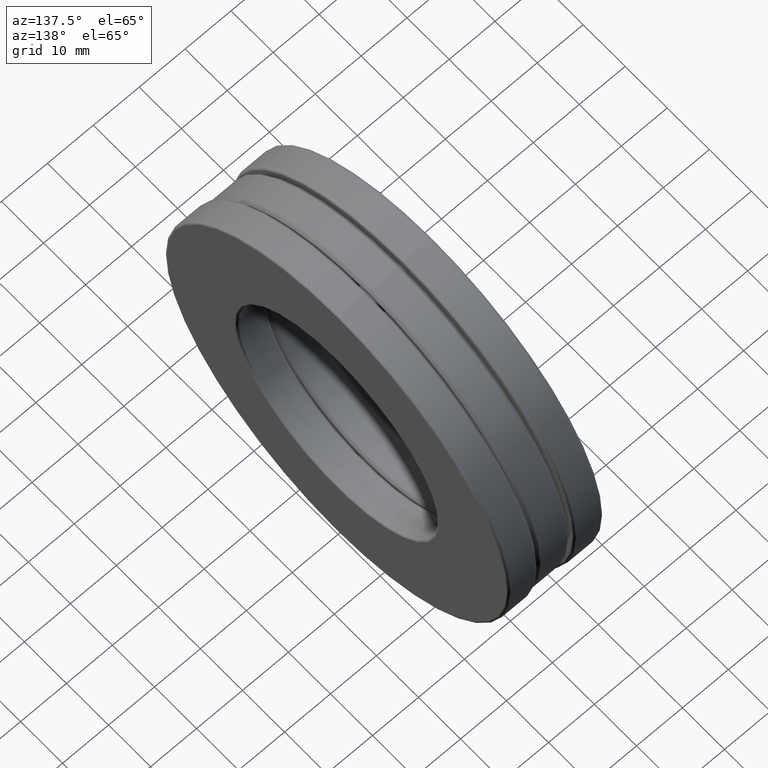
[diagram: clean part render]
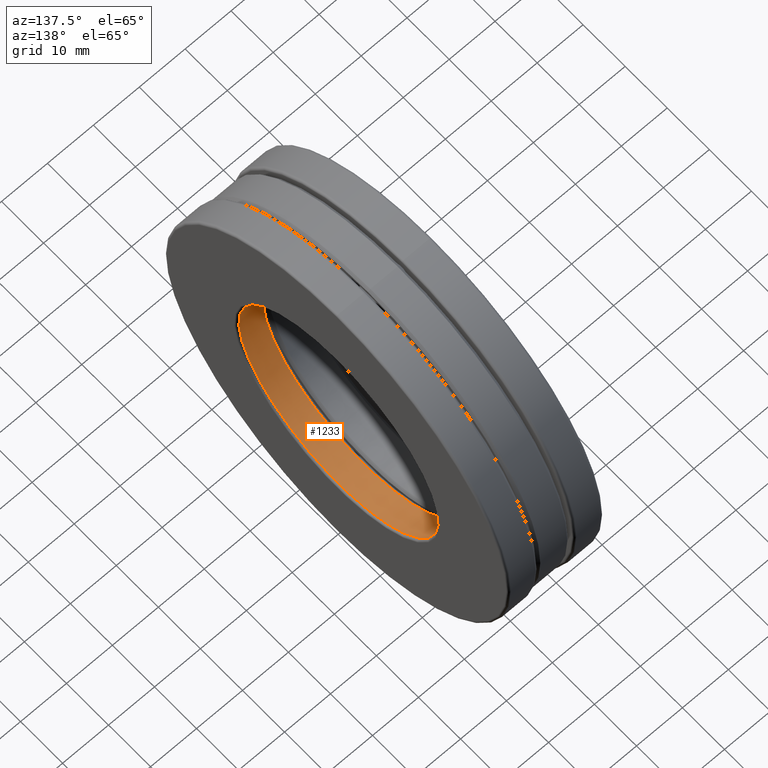
[diagram: same view with one face highlighted and labeled with its STEP entity id]
A machine part, auxiliary view. The second image highlights one B-rep face of the part: STEP entity #1233.
In plain terms, the highlighted cylindrical surface (bore or boss wall) has radius 23.8125 mm, axis along (-1, -0, -0).
Its self-contained STEP definition (entity closure, byte-faithful):
#74 = DIRECTION ( 'NONE',  ( 0.0000000000000000000, 0.0000000000000000000, 1.000000000000000000 ) ) ;
#82 = CIRCLE ( 'NONE', #546, 0.9375000000000000000 ) ;
#244 = DIRECTION ( 'NONE',  ( -1.000000000000000000, -0.0000000000000000000, -0.0000000000000000000 ) ) ;
#362 = ORIENTED_EDGE ( 'NONE', *, *, #1359, .F. ) ;
#385 = CYLINDRICAL_SURFACE ( 'NONE', #1181, 0.9375000000000000000 ) ;
#406 = VERTEX_POINT ( 'NONE', #1313 ) ;
#445 = DIRECTION ( 'NONE',  ( -1.000000000000000000, -0.0000000000000000000, -0.0000000000000000000 ) ) ;
#481 = CARTESIAN_POINT ( 'NONE',  ( 0.1760000000000000500, 0.0000000000000000000, 0.9375000000000000000 ) ) ;
#543 = CIRCLE ( 'NONE', #746, 0.9375000000000000000 ) ;
#546 = AXIS2_PLACEMENT_3D ( 'NONE', #1002, #445, #74 ) ;
#578 = CARTESIAN_POINT ( 'NONE',  ( 0.0000000000000000000, 0.0000000000000000000, 0.0000000000000000000 ) ) ;
#618 = CARTESIAN_POINT ( 'NONE',  ( 0.1760000000000000500, 0.0000000000000000000, 0.0000000000000000000 ) ) ;
#727 = DIRECTION ( 'NONE',  ( 0.0000000000000000000, 0.0000000000000000000, 1.000000000000000000 ) ) ;
#746 = AXIS2_PLACEMENT_3D ( 'NONE', #618, #1395, #727 ) ;
#908 = EDGE_CURVE ( 'NONE', #922, #922, #543, .T. ) ;
#922 = VERTEX_POINT ( 'NONE', #481 ) ;
#1002 = CARTESIAN_POINT ( 'NONE',  ( 0.3860000000000000700, 0.0000000000000000000, 0.0000000000000000000 ) ) ;
#1044 = DIRECTION ( 'NONE',  ( 0.0000000000000000000, 0.0000000000000000000, 1.000000000000000000 ) ) ;
#1098 = EDGE_LOOP ( 'NONE', ( #1331 ) ) ;
#1138 = FACE_OUTER_BOUND ( 'NONE', #1098, .T. ) ;
#1181 = AXIS2_PLACEMENT_3D ( 'NONE', #578, #244, #1044 ) ;
#1196 = EDGE_LOOP ( 'NONE', ( #362 ) ) ;
#1233 = ADVANCED_FACE ( 'NONE', ( #1138, #1430 ), #385, .F. ) ;
#1313 = CARTESIAN_POINT ( 'NONE',  ( 0.3860000000000000700, 0.0000000000000000000, 0.9375000000000000000 ) ) ;
#1331 = ORIENTED_EDGE ( 'NONE', *, *, #908, .T. ) ;
#1359 = EDGE_CURVE ( 'NONE', #406, #406, #82, .T. ) ;
#1395 = DIRECTION ( 'NONE',  ( -1.000000000000000000, -0.0000000000000000000, -0.0000000000000000000 ) ) ;
#1430 = FACE_OUTER_BOUND ( 'NONE', #1196, .T. ) ;